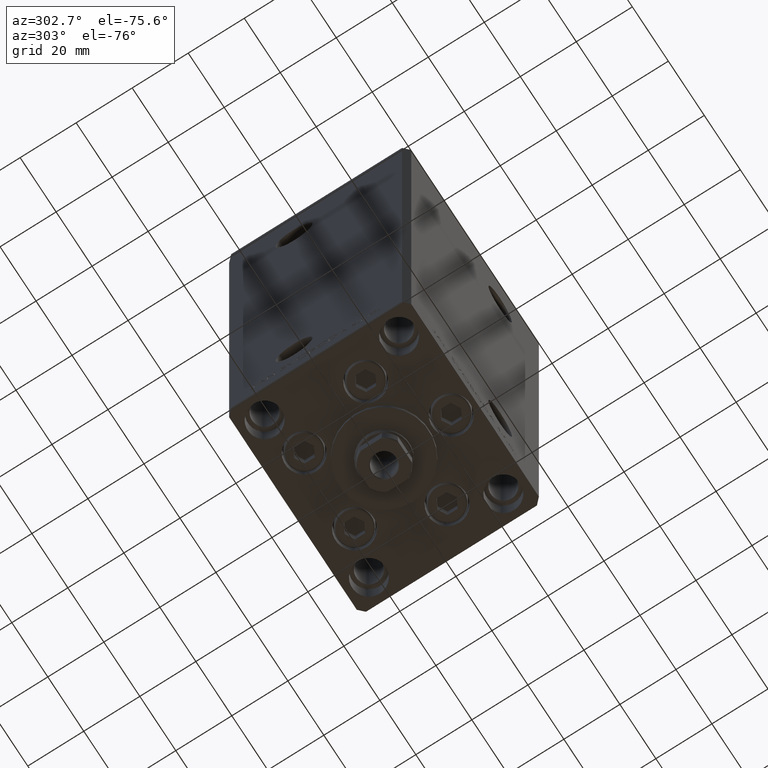
[diagram: clean part render]
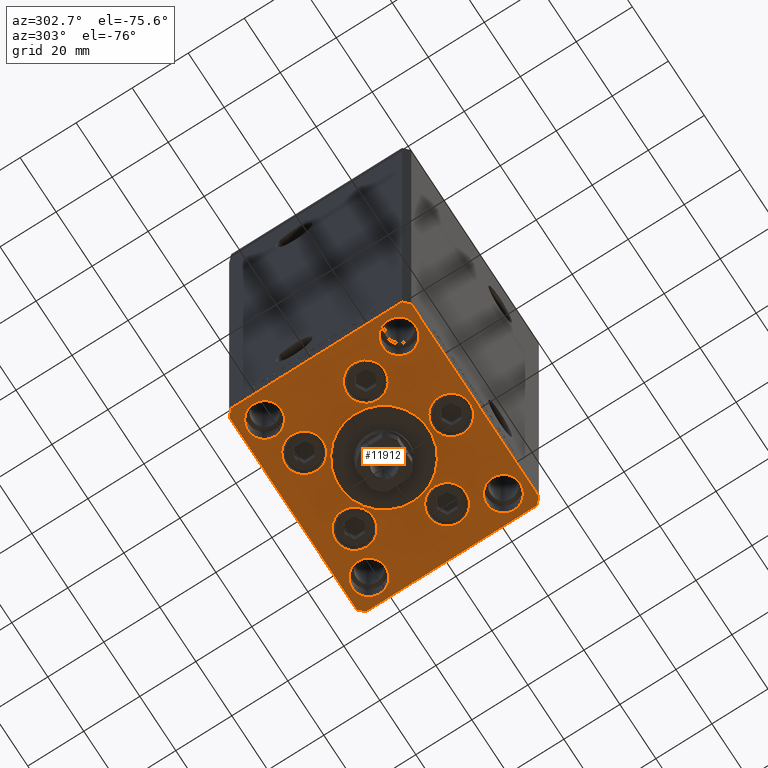
[diagram: same view with one face highlighted and labeled with its STEP entity id]
A machine part, auxiliary view. The second image highlights one B-rep face of the part: STEP entity #11912.
In plain terms, the highlighted planar face has unit normal (0, 0, -1).
Its self-contained STEP definition (entity closure, byte-faithful):
#162 = ORIENTED_EDGE ( 'NONE', *, *, #36738, .T. ) ;
#1187 = FACE_BOUND ( 'NONE', #34397, .T. ) ;
#1192 = LINE ( 'NONE', #5456, #10227 ) ;
#1223 = ORIENTED_EDGE ( 'NONE', *, *, #46724, .F. ) ;
#1257 = CIRCLE ( 'NONE', #46967, 6.749999999999997335 ) ;
#1298 = VERTEX_POINT ( 'NONE', #15175 ) ;
#1340 = VECTOR ( 'NONE', #41248, 1000.000000000000000 ) ;
#1384 = ORIENTED_EDGE ( 'NONE', *, *, #13258, .F. ) ;
#1471 = VERTEX_POINT ( 'NONE', #4843 ) ;
#1484 = VERTEX_POINT ( 'NONE', #1567 ) ;
#1549 = VECTOR ( 'NONE', #35441, 1000.000000000000000 ) ;
#1567 = CARTESIAN_POINT ( 'NONE',  ( -29.37741699796953654, -8.000000000000000000, 0.000000000000000000 ) ) ;
#1584 = CARTESIAN_POINT ( 'NONE',  ( 20.74106857963323947, 19.50000000000000000, 0.000000000000000000 ) ) ;
#1673 = VERTEX_POINT ( 'NONE', #34432 ) ;
#2079 = CIRCLE ( 'NONE', #37372, 5.999999999999998224 ) ;
#2821 = CARTESIAN_POINT ( 'NONE',  ( -13.99106857963324124, 19.50000000000000000, 0.000000000000000000 ) ) ;
#3264 = EDGE_CURVE ( 'NONE', #1484, #1298, #34856, .T. ) ;
#3294 = CARTESIAN_POINT ( 'NONE',  ( -29.00000000000000000, 24.00000000000000711, 0.000000000000000000 ) ) ;
#3917 = DIRECTION ( 'NONE',  ( 0.000000000000000000, 0.000000000000000000, 1.000000000000000000 ) ) ;
#3936 = CARTESIAN_POINT ( 'NONE',  ( 35.00000000000000000, 24.00000000000000355, 0.000000000000000000 ) ) ;
#4063 = DIRECTION ( 'NONE',  ( 0.000000000000000000, 0.000000000000000000, 1.000000000000000000 ) ) ;
#4670 = CARTESIAN_POINT ( 'NONE',  ( -37.50000000000001421, 30.50000000000000000, 0.000000000000000000 ) ) ;
#4710 = FACE_BOUND ( 'NONE', #40633, .T. ) ;
#4747 = EDGE_LOOP ( 'NONE', ( #11064, #12440 ) ) ;
#4843 = CARTESIAN_POINT ( 'NONE',  ( -20.74106857963324302, 19.50000000000000000, 0.000000000000000000 ) ) ;
#4868 = AXIS2_PLACEMENT_3D ( 'NONE', #6126, #14420, #24699 ) ;
#4921 = VERTEX_POINT ( 'NONE', #35603 ) ;
#5321 = CARTESIAN_POINT ( 'NONE',  ( 29.00000000000000000, 24.00000000000000355, 0.000000000000000000 ) ) ;
#5450 = PLANE ( 'NONE',  #15637 ) ;
#5456 = CARTESIAN_POINT ( 'NONE',  ( 37.50000000000000711, -30.49999999999992895, 0.000000000000000000 ) ) ;
#5685 = AXIS2_PLACEMENT_3D ( 'NONE', #27184, #7876, #19428 ) ;
#5849 = AXIS2_PLACEMENT_3D ( 'NONE', #22349, #26849, #10810 ) ;
#5869 = CARTESIAN_POINT ( 'NONE',  ( -35.00000000000000000, -23.99999999999999645, 0.000000000000000000 ) ) ;
#5947 = ORIENTED_EDGE ( 'NONE', *, *, #48117, .F. ) ;
#6126 = CARTESIAN_POINT ( 'NONE',  ( -29.00000000000000000, -23.99999999999999645, 0.000000000000000000 ) ) ;
#6437 = CIRCLE ( 'NONE', #32889, 6.750000000001552536 ) ;
#6808 = EDGE_CURVE ( 'NONE', #16669, #17413, #13529, .T. ) ;
#6998 = LINE ( 'NONE', #41907, #7203 ) ;
#7203 = VECTOR ( 'NONE', #11017, 1000.000000000000000 ) ;
#7327 = DIRECTION ( 'NONE',  ( 1.000000000000000000, 0.000000000000000000, 0.000000000000000000 ) ) ;
#7657 = EDGE_LOOP ( 'NONE', ( #10997, #30143 ) ) ;
#7714 = ORIENTED_EDGE ( 'NONE', *, *, #6808, .T. ) ;
#7876 = DIRECTION ( 'NONE',  ( 0.000000000000000000, 0.000000000000000000, 1.000000000000000000 ) ) ;
#8073 = CIRCLE ( 'NONE', #4868, 6.000000000000001776 ) ;
#8186 = EDGE_LOOP ( 'NONE', ( #16230, #5947 ) ) ;
#8414 = DIRECTION ( 'NONE',  ( 1.000000000000000000, 0.000000000000000000, 0.000000000000000000 ) ) ;
#8425 = VERTEX_POINT ( 'NONE', #26464 ) ;
#8729 = FACE_BOUND ( 'NONE', #29492, .T. ) ;
#8767 = AXIS2_PLACEMENT_3D ( 'NONE', #3294, #33667, #49014 ) ;
#8769 = AXIS2_PLACEMENT_3D ( 'NONE', #42431, #11786, #46679 ) ;
#9318 = AXIS2_PLACEMENT_3D ( 'NONE', #26395, #19113, #7327 ) ;
#9722 = DIRECTION ( 'NONE',  ( 0.000000000000000000, 1.000000000000000000, 0.000000000000000000 ) ) ;
#9781 = DIRECTION ( 'NONE',  ( 1.000000000000000000, 0.000000000000000000, 0.000000000000000000 ) ) ;
#10157 = EDGE_CURVE ( 'NONE', #16767, #11431, #2079, .T. ) ;
#10227 = VECTOR ( 'NONE', #9722, 1000.000000000000000 ) ;
#10689 = DIRECTION ( 'NONE',  ( 1.000000000000000000, 0.000000000000000000, 0.000000000000000000 ) ) ;
#10810 = DIRECTION ( 'NONE',  ( 1.000000000000000000, 0.000000000000000000, 0.000000000000000000 ) ) ;
#10997 = ORIENTED_EDGE ( 'NONE', *, *, #29968, .F. ) ;
#11004 = EDGE_LOOP ( 'NONE', ( #38605, #34746 ) ) ;
#11017 = DIRECTION ( 'NONE',  ( 0.7071067811865512365, -0.7071067811865439090, 0.000000000000000000 ) ) ;
#11064 = ORIENTED_EDGE ( 'NONE', *, *, #22106, .F. ) ;
#11431 = VERTEX_POINT ( 'NONE', #35227 ) ;
#11729 = DIRECTION ( 'NONE',  ( 0.000000000000000000, 0.000000000000000000, 1.000000000000000000 ) ) ;
#11786 = DIRECTION ( 'NONE',  ( 0.000000000000000000, 0.000000000000000000, 1.000000000000000000 ) ) ;
#11912 = ADVANCED_FACE ( 'NONE', ( #24037, #20032, #1187, #27789, #46656, #43139, #28291, #8729, #4710, #35090, #19783 ), #5450, .T. ) ;
#11913 = CIRCLE ( 'NONE', #42390, 6.750000000000000000 ) ;
#12372 = DIRECTION ( 'NONE',  ( 1.000000000000000000, 0.000000000000000000, 0.000000000000000000 ) ) ;
#12440 = ORIENTED_EDGE ( 'NONE', *, *, #44525, .F. ) ;
#12530 = VERTEX_POINT ( 'NONE', #29730 ) ;
#12746 = CIRCLE ( 'NONE', #8769, 6.000000000000001776 ) ;
#12797 = CIRCLE ( 'NONE', #15996, 6.750000000001552536 ) ;
#13258 = EDGE_CURVE ( 'NONE', #4921, #14132, #1257, .T. ) ;
#13529 = LINE ( 'NONE', #21059, #42891 ) ;
#13642 = AXIS2_PLACEMENT_3D ( 'NONE', #14467, #45095, #10689 ) ;
#13870 = CARTESIAN_POINT ( 'NONE',  ( -29.00000000000000000, -23.99999999999999645, 0.000000000000000000 ) ) ;
#13929 = DIRECTION ( 'NONE',  ( 1.000000000000000000, 0.000000000000000000, 0.000000000000000000 ) ) ;
#14059 = EDGE_CURVE ( 'NONE', #35561, #17783, #45394, .T. ) ;
#14132 = VERTEX_POINT ( 'NONE', #1584 ) ;
#14420 = DIRECTION ( 'NONE',  ( 0.000000000000000000, 0.000000000000000000, 1.000000000000000000 ) ) ;
#14467 = CARTESIAN_POINT ( 'NONE',  ( 22.62741699796953299, -8.000000000000000000, 0.000000000000000000 ) ) ;
#14518 = DIRECTION ( 'NONE',  ( 1.000000000000000000, 1.172770800660376149E-15, 0.000000000000000000 ) ) ;
#14647 = EDGE_CURVE ( 'NONE', #31045, #12530, #43031, .T. ) ;
#14698 = DIRECTION ( 'NONE',  ( 1.000000000000000000, 0.000000000000000000, 0.000000000000000000 ) ) ;
#14941 = EDGE_CURVE ( 'NONE', #35800, #46978, #35758, .T. ) ;
#15175 = CARTESIAN_POINT ( 'NONE',  ( -15.87741699796953476, -8.000000000000000000, 0.000000000000000000 ) ) ;
#15230 = DIRECTION ( 'NONE',  ( 0.000000000000000000, 0.000000000000000000, 1.000000000000000000 ) ) ;
#15281 = CARTESIAN_POINT ( 'NONE',  ( 16.00000000000000355, -4.979459025271462852E-15, 0.000000000000000000 ) ) ;
#15637 = AXIS2_PLACEMENT_3D ( 'NONE', #16515, #35580, #32073 ) ;
#15647 = DIRECTION ( 'NONE',  ( 2.275047181608926165E-16, -1.000000000000000000, 0.000000000000000000 ) ) ;
#15703 = EDGE_CURVE ( 'NONE', #43423, #1471, #22193, .T. ) ;
#15996 = AXIS2_PLACEMENT_3D ( 'NONE', #34548, #15230, #46104 ) ;
#16059 = ORIENTED_EDGE ( 'NONE', *, *, #14647, .F. ) ;
#16129 = CARTESIAN_POINT ( 'NONE',  ( 37.50000000000000711, 30.50000000000001421, 0.000000000000000000 ) ) ;
#16230 = ORIENTED_EDGE ( 'NONE', *, *, #32221, .F. ) ;
#16515 = CARTESIAN_POINT ( 'NONE',  ( 0.000000000000000000, 0.000000000000000000, 0.000000000000000000 ) ) ;
#16669 = VERTEX_POINT ( 'NONE', #31156 ) ;
#16767 = VERTEX_POINT ( 'NONE', #37543 ) ;
#16798 = EDGE_CURVE ( 'NONE', #11431, #16767, #41504, .T. ) ;
#17413 = VERTEX_POINT ( 'NONE', #43069 ) ;
#17783 = VERTEX_POINT ( 'NONE', #35573 ) ;
#18150 = DIRECTION ( 'NONE',  ( 0.000000000000000000, 0.000000000000000000, 1.000000000000000000 ) ) ;
#18404 = EDGE_CURVE ( 'NONE', #24496, #20485, #1192, .T. ) ;
#18772 = VERTEX_POINT ( 'NONE', #28475 ) ;
#19113 = DIRECTION ( 'NONE',  ( 0.000000000000000000, 0.000000000000000000, 1.000000000000000000 ) ) ;
#19289 = CIRCLE ( 'NONE', #32112, 6.000000000000001776 ) ;
#19428 = DIRECTION ( 'NONE',  ( 1.000000000000000000, 0.000000000000000000, 0.000000000000000000 ) ) ;
#19496 = VERTEX_POINT ( 'NONE', #4670 ) ;
#19783 = FACE_OUTER_BOUND ( 'NONE', #38104, .T. ) ;
#20004 = EDGE_CURVE ( 'NONE', #1471, #43423, #11913, .T. ) ;
#20032 = FACE_BOUND ( 'NONE', #24329, .T. ) ;
#20485 = VERTEX_POINT ( 'NONE', #45224 ) ;
#21059 = CARTESIAN_POINT ( 'NONE',  ( 35.50000000000000000, 32.49999999999999289, 0.000000000000000000 ) ) ;
#21076 = CARTESIAN_POINT ( 'NONE',  ( 0.000000000000000000, -24.00000000000001066, 0.000000000000000000 ) ) ;
#21528 = VECTOR ( 'NONE', #15647, 1000.000000000000000 ) ;
#22106 = EDGE_CURVE ( 'NONE', #33773, #45904, #12797, .T. ) ;
#22131 = DIRECTION ( 'NONE',  ( 1.000000000000000000, 0.000000000000000000, 0.000000000000000000 ) ) ;
#22193 = CIRCLE ( 'NONE', #31785, 6.750000000000000000 ) ;
#22349 = CARTESIAN_POINT ( 'NONE',  ( 22.62741699796953299, -8.000000000000000000, 0.000000000000000000 ) ) ;
#22396 = CARTESIAN_POINT ( 'NONE',  ( -13.99106857963324124, 19.50000000000000000, 0.000000000000000000 ) ) ;
#23022 = AXIS2_PLACEMENT_3D ( 'NONE', #33513, #48855, #14698 ) ;
#23167 = LINE ( 'NONE', #27659, #21528 ) ;
#23177 = EDGE_CURVE ( 'NONE', #30745, #28865, #44931, .T. ) ;
#23277 = ORIENTED_EDGE ( 'NONE', *, *, #39790, .T. ) ;
#23855 = CARTESIAN_POINT ( 'NONE',  ( -35.50000000000001421, -32.50000000000000711, 0.000000000000000000 ) ) ;
#24037 = FACE_BOUND ( 'NONE', #11004, .T. ) ;
#24206 = ORIENTED_EDGE ( 'NONE', *, *, #42029, .F. ) ;
#24329 = EDGE_LOOP ( 'NONE', ( #28695, #26122 ) ) ;
#24496 = VERTEX_POINT ( 'NONE', #45206 ) ;
#24699 = DIRECTION ( 'NONE',  ( 1.000000000000000000, 0.000000000000000000, 0.000000000000000000 ) ) ;
#24875 = AXIS2_PLACEMENT_3D ( 'NONE', #32294, #47617, #33031 ) ;
#25649 = CARTESIAN_POINT ( 'NONE',  ( -29.00000000000000000, 24.00000000000000711, 0.000000000000000000 ) ) ;
#25914 = LINE ( 'NONE', #48789, #1340 ) ;
#26045 = CARTESIAN_POINT ( 'NONE',  ( -35.50000000000001421, -32.50000000000000711, 0.000000000000000000 ) ) ;
#26122 = ORIENTED_EDGE ( 'NONE', *, *, #20004, .F. ) ;
#26285 = CARTESIAN_POINT ( 'NONE',  ( 35.50000000000001421, -32.49999999999992184, 0.000000000000000000 ) ) ;
#26395 = CARTESIAN_POINT ( 'NONE',  ( 0.000000000000000000, -6.938893903907228378E-15, 0.000000000000000000 ) ) ;
#26446 = CARTESIAN_POINT ( 'NONE',  ( -7.241068579633241242, 19.50000000000000000, 0.000000000000000000 ) ) ;
#26464 = CARTESIAN_POINT ( 'NONE',  ( -37.50000000000000000, -30.50000000000004263, 0.000000000000000000 ) ) ;
#26774 = DIRECTION ( 'NONE',  ( 0.7071067811865463515, 0.7071067811865487940, 0.000000000000000000 ) ) ;
#26849 = DIRECTION ( 'NONE',  ( 0.000000000000000000, 0.000000000000000000, 1.000000000000000000 ) ) ;
#26867 = ORIENTED_EDGE ( 'NONE', *, *, #46567, .T. ) ;
#27042 = CARTESIAN_POINT ( 'NONE',  ( -6.750000000001552536, -24.00000000000001066, 0.000000000000000000 ) ) ;
#27184 = CARTESIAN_POINT ( 'NONE',  ( -22.62741699796953299, -8.000000000000000000, 0.000000000000000000 ) ) ;
#27209 = CIRCLE ( 'NONE', #8767, 6.000000000000001776 ) ;
#27239 = CARTESIAN_POINT ( 'NONE',  ( 29.00000000000000355, -23.99999999999999645, 0.000000000000000000 ) ) ;
#27270 = DIRECTION ( 'NONE',  ( 1.000000000000000000, 0.000000000000000000, 0.000000000000000000 ) ) ;
#27517 = CIRCLE ( 'NONE', #5849, 6.750000000000009770 ) ;
#27659 = CARTESIAN_POINT ( 'NONE',  ( -37.50000000000001421, 30.50000000000000000, 0.000000000000000000 ) ) ;
#27789 = FACE_BOUND ( 'NONE', #8186, .T. ) ;
#28094 = EDGE_CURVE ( 'NONE', #17783, #24496, #38342, .T. ) ;
#28291 = FACE_BOUND ( 'NONE', #34084, .T. ) ;
#28475 = CARTESIAN_POINT ( 'NONE',  ( 23.00000000000000000, 24.00000000000000355, 0.000000000000000000 ) ) ;
#28695 = ORIENTED_EDGE ( 'NONE', *, *, #15703, .F. ) ;
#28836 = EDGE_CURVE ( 'NONE', #28865, #30745, #8073, .T. ) ;
#28865 = VERTEX_POINT ( 'NONE', #5869 ) ;
#28881 = ORIENTED_EDGE ( 'NONE', *, *, #46989, .T. ) ;
#29163 = DIRECTION ( 'NONE',  ( 0.000000000000000000, 0.000000000000000000, 1.000000000000000000 ) ) ;
#29195 = EDGE_CURVE ( 'NONE', #30761, #18772, #19289, .T. ) ;
#29478 = AXIS2_PLACEMENT_3D ( 'NONE', #31253, #3917, #8414 ) ;
#29492 = EDGE_LOOP ( 'NONE', ( #1223, #16059 ) ) ;
#29688 = DIRECTION ( 'NONE',  ( 1.000000000000000000, 0.000000000000000000, 0.000000000000000000 ) ) ;
#29730 = CARTESIAN_POINT ( 'NONE',  ( -23.00000000000000000, 24.00000000000000711, 0.000000000000000000 ) ) ;
#29968 = EDGE_CURVE ( 'NONE', #1298, #1484, #44995, .T. ) ;
#30143 = ORIENTED_EDGE ( 'NONE', *, *, #3264, .F. ) ;
#30745 = VERTEX_POINT ( 'NONE', #38828 ) ;
#30761 = VERTEX_POINT ( 'NONE', #3936 ) ;
#31041 = CARTESIAN_POINT ( 'NONE',  ( -22.62741699796953299, -8.000000000000000000, 0.000000000000000000 ) ) ;
#31045 = VERTEX_POINT ( 'NONE', #34922 ) ;
#31087 = CARTESIAN_POINT ( 'NONE',  ( -16.00000000000000355, -6.938893903907228378E-15, 0.000000000000000000 ) ) ;
#31156 = CARTESIAN_POINT ( 'NONE',  ( 35.50000000000000000, 32.49999999999999289, 0.000000000000000000 ) ) ;
#31242 = AXIS2_PLACEMENT_3D ( 'NONE', #13870, #29163, #45508 ) ;
#31253 = CARTESIAN_POINT ( 'NONE',  ( 13.99106857963324124, 19.50000000000000000, 0.000000000000000000 ) ) ;
#31785 = AXIS2_PLACEMENT_3D ( 'NONE', #22396, #4063, #49279 ) ;
#32073 = DIRECTION ( 'NONE',  ( 1.000000000000000000, 0.000000000000000000, 0.000000000000000000 ) ) ;
#32112 = AXIS2_PLACEMENT_3D ( 'NONE', #5321, #46769, #12372 ) ;
#32220 = VERTEX_POINT ( 'NONE', #34145 ) ;
#32221 = EDGE_CURVE ( 'NONE', #32220, #1673, #27517, .T. ) ;
#32294 = CARTESIAN_POINT ( 'NONE',  ( 0.000000000000000000, -6.938893903907228378E-15, 0.000000000000000000 ) ) ;
#32602 = DIRECTION ( 'NONE',  ( -1.000000000000000000, -1.954618001100627573E-16, 0.000000000000000000 ) ) ;
#32841 = ORIENTED_EDGE ( 'NONE', *, *, #16798, .F. ) ;
#32889 = AXIS2_PLACEMENT_3D ( 'NONE', #21076, #33621, #9781 ) ;
#32898 = VECTOR ( 'NONE', #26774, 1000.000000000000000 ) ;
#33031 = DIRECTION ( 'NONE',  ( 1.000000000000000000, 0.000000000000000000, 0.000000000000000000 ) ) ;
#33513 = CARTESIAN_POINT ( 'NONE',  ( 29.00000000000000355, -23.99999999999999645, 0.000000000000000000 ) ) ;
#33621 = DIRECTION ( 'NONE',  ( 0.000000000000000000, 0.000000000000000000, 1.000000000000000000 ) ) ;
#33667 = DIRECTION ( 'NONE',  ( 0.000000000000000000, 0.000000000000000000, 1.000000000000000000 ) ) ;
#33773 = VERTEX_POINT ( 'NONE', #39769 ) ;
#34080 = ORIENTED_EDGE ( 'NONE', *, *, #29195, .F. ) ;
#34084 = EDGE_LOOP ( 'NONE', ( #34080, #24206 ) ) ;
#34145 = CARTESIAN_POINT ( 'NONE',  ( 29.37741699796954364, -8.000000000000000000, 0.000000000000000000 ) ) ;
#34397 = EDGE_LOOP ( 'NONE', ( #39073, #1384 ) ) ;
#34432 = CARTESIAN_POINT ( 'NONE',  ( 15.87741699796952410, -8.000000000000000000, 0.000000000000000000 ) ) ;
#34548 = CARTESIAN_POINT ( 'NONE',  ( 0.000000000000000000, -24.00000000000001066, 0.000000000000000000 ) ) ;
#34567 = ORIENTED_EDGE ( 'NONE', *, *, #10157, .F. ) ;
#34746 = ORIENTED_EDGE ( 'NONE', *, *, #48799, .F. ) ;
#34750 = ORIENTED_EDGE ( 'NONE', *, *, #23177, .F. ) ;
#34856 = CIRCLE ( 'NONE', #41295, 6.749999999999999112 ) ;
#34922 = CARTESIAN_POINT ( 'NONE',  ( -35.00000000000000000, 24.00000000000000711, 0.000000000000000000 ) ) ;
#35090 = FACE_BOUND ( 'NONE', #37048, .T. ) ;
#35227 = CARTESIAN_POINT ( 'NONE',  ( 35.00000000000000000, -23.99999999999999645, 0.000000000000000000 ) ) ;
#35280 = CIRCLE ( 'NONE', #13642, 6.750000000000009770 ) ;
#35441 = DIRECTION ( 'NONE',  ( -0.7071067811865524577, 0.7071067811865426878, 0.000000000000000000 ) ) ;
#35561 = VERTEX_POINT ( 'NONE', #23855 ) ;
#35573 = CARTESIAN_POINT ( 'NONE',  ( 35.50000000000001421, -32.49999999999992184, 0.000000000000000000 ) ) ;
#35580 = DIRECTION ( 'NONE',  ( -0.000000000000000000, 0.000000000000000000, 1.000000000000000000 ) ) ;
#35603 = CARTESIAN_POINT ( 'NONE',  ( 7.241068579633242130, 19.50000000000000000, 0.000000000000000000 ) ) ;
#35758 = CIRCLE ( 'NONE', #9318, 16.00000000000000355 ) ;
#35789 = ORIENTED_EDGE ( 'NONE', *, *, #14059, .T. ) ;
#35800 = VERTEX_POINT ( 'NONE', #31087 ) ;
#36738 = EDGE_CURVE ( 'NONE', #17413, #19496, #25914, .T. ) ;
#37048 = EDGE_LOOP ( 'NONE', ( #32841, #34567 ) ) ;
#37281 = CARTESIAN_POINT ( 'NONE',  ( 13.99106857963324124, 19.50000000000000000, 0.000000000000000000 ) ) ;
#37372 = AXIS2_PLACEMENT_3D ( 'NONE', #27239, #47083, #42829 ) ;
#37543 = CARTESIAN_POINT ( 'NONE',  ( 23.00000000000000711, -23.99999999999999645, 0.000000000000000000 ) ) ;
#38104 = EDGE_LOOP ( 'NONE', ( #28881, #35789, #39823, #44159, #26867, #7714, #162, #23277 ) ) ;
#38342 = LINE ( 'NONE', #26285, #32898 ) ;
#38605 = ORIENTED_EDGE ( 'NONE', *, *, #14941, .F. ) ;
#38828 = CARTESIAN_POINT ( 'NONE',  ( -23.00000000000000000, -23.99999999999999645, 0.000000000000000000 ) ) ;
#38914 = EDGE_CURVE ( 'NONE', #14132, #4921, #41553, .T. ) ;
#39073 = ORIENTED_EDGE ( 'NONE', *, *, #38914, .F. ) ;
#39758 = VECTOR ( 'NONE', #14518, 1000.000000000000000 ) ;
#39769 = CARTESIAN_POINT ( 'NONE',  ( 6.750000000001552536, -24.00000000000001066, 0.000000000000000000 ) ) ;
#39790 = EDGE_CURVE ( 'NONE', #19496, #8425, #23167, .T. ) ;
#39823 = ORIENTED_EDGE ( 'NONE', *, *, #28094, .T. ) ;
#40049 = DIRECTION ( 'NONE',  ( 0.000000000000000000, 0.000000000000000000, 1.000000000000000000 ) ) ;
#40633 = EDGE_LOOP ( 'NONE', ( #34750, #46622 ) ) ;
#40980 = DIRECTION ( 'NONE',  ( 0.000000000000000000, 0.000000000000000000, 1.000000000000000000 ) ) ;
#41248 = DIRECTION ( 'NONE',  ( -0.7071067811865524577, -0.7071067811865426878, 0.000000000000000000 ) ) ;
#41295 = AXIS2_PLACEMENT_3D ( 'NONE', #31041, #11729, #27270 ) ;
#41504 = CIRCLE ( 'NONE', #23022, 5.999999999999998224 ) ;
#41553 = CIRCLE ( 'NONE', #29478, 6.749999999999997335 ) ;
#41907 = CARTESIAN_POINT ( 'NONE',  ( -37.50000000000000000, -30.50000000000004263, 0.000000000000000000 ) ) ;
#42029 = EDGE_CURVE ( 'NONE', #18772, #30761, #12746, .T. ) ;
#42390 = AXIS2_PLACEMENT_3D ( 'NONE', #2821, #18150, #29688 ) ;
#42431 = CARTESIAN_POINT ( 'NONE',  ( 29.00000000000000000, 24.00000000000000355, 0.000000000000000000 ) ) ;
#42829 = DIRECTION ( 'NONE',  ( 1.000000000000000000, 0.000000000000000000, 0.000000000000000000 ) ) ;
#42891 = VECTOR ( 'NONE', #32602, 1000.000000000000000 ) ;
#43000 = LINE ( 'NONE', #16129, #1549 ) ;
#43031 = CIRCLE ( 'NONE', #46216, 6.000000000000001776 ) ;
#43069 = CARTESIAN_POINT ( 'NONE',  ( -35.50000000000000711, 32.49999999999997868, 0.000000000000000000 ) ) ;
#43139 = FACE_BOUND ( 'NONE', #7657, .T. ) ;
#43423 = VERTEX_POINT ( 'NONE', #26446 ) ;
#44159 = ORIENTED_EDGE ( 'NONE', *, *, #18404, .T. ) ;
#44525 = EDGE_CURVE ( 'NONE', #45904, #33773, #6437, .T. ) ;
#44931 = CIRCLE ( 'NONE', #31242, 6.000000000000001776 ) ;
#44995 = CIRCLE ( 'NONE', #5685, 6.749999999999999112 ) ;
#45095 = DIRECTION ( 'NONE',  ( 0.000000000000000000, 0.000000000000000000, 1.000000000000000000 ) ) ;
#45206 = CARTESIAN_POINT ( 'NONE',  ( 37.50000000000000711, -30.49999999999992895, 0.000000000000000000 ) ) ;
#45224 = CARTESIAN_POINT ( 'NONE',  ( 37.50000000000000711, 30.50000000000001421, 0.000000000000000000 ) ) ;
#45394 = LINE ( 'NONE', #26045, #39758 ) ;
#45508 = DIRECTION ( 'NONE',  ( 1.000000000000000000, 0.000000000000000000, 0.000000000000000000 ) ) ;
#45904 = VERTEX_POINT ( 'NONE', #27042 ) ;
#46104 = DIRECTION ( 'NONE',  ( 1.000000000000000000, 0.000000000000000000, 0.000000000000000000 ) ) ;
#46216 = AXIS2_PLACEMENT_3D ( 'NONE', #25649, #40980, #22131 ) ;
#46567 = EDGE_CURVE ( 'NONE', #20485, #16669, #43000, .T. ) ;
#46622 = ORIENTED_EDGE ( 'NONE', *, *, #28836, .F. ) ;
#46656 = FACE_BOUND ( 'NONE', #4747, .T. ) ;
#46679 = DIRECTION ( 'NONE',  ( 1.000000000000000000, 0.000000000000000000, 0.000000000000000000 ) ) ;
#46724 = EDGE_CURVE ( 'NONE', #12530, #31045, #27209, .T. ) ;
#46769 = DIRECTION ( 'NONE',  ( 0.000000000000000000, 0.000000000000000000, 1.000000000000000000 ) ) ;
#46967 = AXIS2_PLACEMENT_3D ( 'NONE', #37281, #40049, #13929 ) ;
#46978 = VERTEX_POINT ( 'NONE', #15281 ) ;
#46989 = EDGE_CURVE ( 'NONE', #8425, #35561, #6998, .T. ) ;
#47083 = DIRECTION ( 'NONE',  ( 0.000000000000000000, 0.000000000000000000, 1.000000000000000000 ) ) ;
#47337 = CIRCLE ( 'NONE', #24875, 16.00000000000000355 ) ;
#47617 = DIRECTION ( 'NONE',  ( 0.000000000000000000, 0.000000000000000000, 1.000000000000000000 ) ) ;
#48117 = EDGE_CURVE ( 'NONE', #1673, #32220, #35280, .T. ) ;
#48789 = CARTESIAN_POINT ( 'NONE',  ( -35.50000000000000711, 32.49999999999997868, 0.000000000000000000 ) ) ;
#48799 = EDGE_CURVE ( 'NONE', #46978, #35800, #47337, .T. ) ;
#48855 = DIRECTION ( 'NONE',  ( 0.000000000000000000, 0.000000000000000000, 1.000000000000000000 ) ) ;
#49014 = DIRECTION ( 'NONE',  ( 1.000000000000000000, 0.000000000000000000, 0.000000000000000000 ) ) ;
#49279 = DIRECTION ( 'NONE',  ( 1.000000000000000000, 0.000000000000000000, 0.000000000000000000 ) ) ;